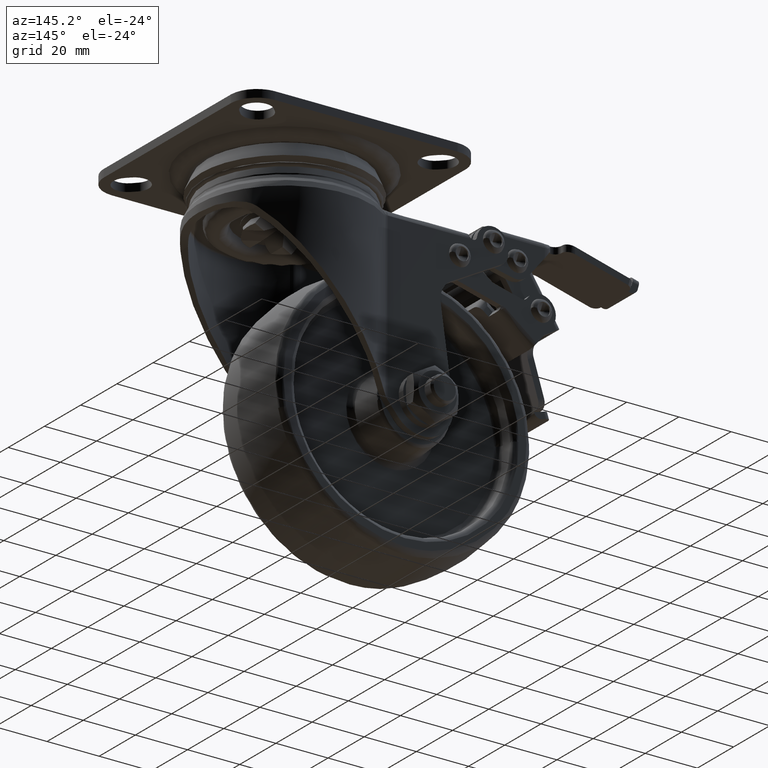
[diagram: clean part render]
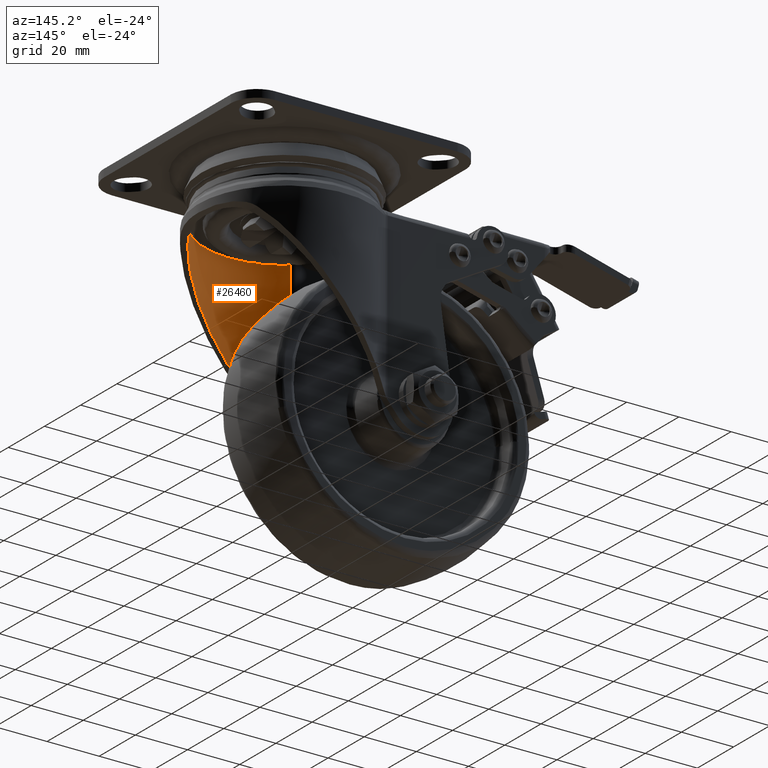
[diagram: same view with one face highlighted and labeled with its STEP entity id]
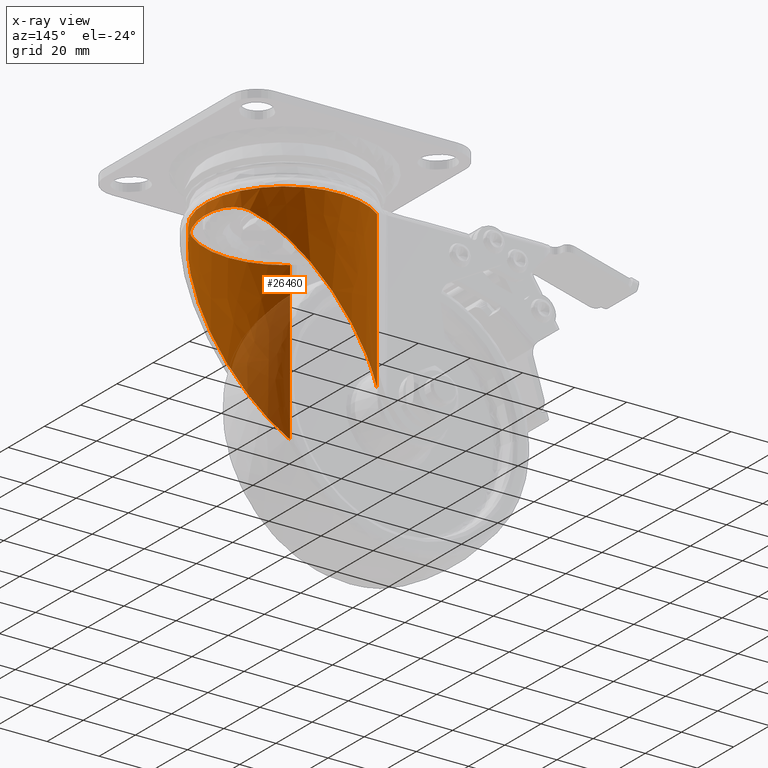
[diagram: x-ray of the same camera — body ghosted, the highlighted face saturated]
A machine part, auxiliary view. The second image highlights one B-rep face of the part: STEP entity #26460.
The next image is the same camera in x-ray: the body ghosted, the highlighted face saturated — about 22% of this face is hidden behind the body in this view.
In plain terms, the highlighted face is a freeform B-spline surface patch.
Its self-contained STEP definition (entity closure, byte-faithful):
#24074=CARTESIAN_POINT('',(-18.749469694795049,24.056338054439951,-21.050011000000051));
#24075=VERTEX_POINT('',#24074);
#24220=CARTESIAN_POINT('',(-18.749469694795049,24.056338054439951,-81.248765110259001));
#24221=VERTEX_POINT('',#24220);
#24237=CARTESIAN_POINT('',(-18.749469694795049,24.056338054439951,-21.050011000000051));
#24238=CARTESIAN_POINT('',(-18.749469694795049,24.056338054439951,-81.248765110259001));
#24239=QUASI_UNIFORM_CURVE('',1,(#24237,#24238),.UNSPECIFIED.,.F.,.U.);
#24240=EDGE_CURVE('',#24075,#24221,#24239,.T.);
#24406=CARTESIAN_POINT('',(-18.749469694795302,-24.056338054439799,-21.050011000000051));
#24407=VERTEX_POINT('',#24406);
#24515=CARTESIAN_POINT('',(-18.749469694795302,-24.056338054439799,-81.248765110259285));
#24516=VERTEX_POINT('',#24515);
#24536=CARTESIAN_POINT('',(-18.749469694795302,-24.056338054439799,-81.248765110259285));
#24537=CARTESIAN_POINT('',(-18.749469694795302,-24.056338054439799,-21.050011000000051));
#24538=QUASI_UNIFORM_CURVE('',1,(#24536,#24537),.UNSPECIFIED.,.F.,.U.);
#24539=EDGE_CURVE('',#24516,#24407,#24538,.T.);
#24558=CARTESIAN_POINT('',(25.319569484859901,-17.004982079581449,-28.396016215767649));
#24559=VERTEX_POINT('',#24558);
#24567=CARTESIAN_POINT('',(25.319569484859901,17.004982079581399,-28.396016215767649));
#24568=VERTEX_POINT('',#24567);
#24569=CARTESIAN_POINT('',(25.319569484859901,17.004982079581399,-28.396016215767599));
#24570=CARTESIAN_POINT('',(25.501726099761090,16.733759972640438,-28.177552686585688));
#24571=CARTESIAN_POINT('',(25.683856663311630,16.453139520035819,-27.977934000523501));
#24572=CARTESIAN_POINT('',(26.045290072859920,15.874796319571651,-27.609830883265069));
#24573=CARTESIAN_POINT('',(26.224602760017710,15.577064630157709,-27.441375587014338));
#24574=CARTESIAN_POINT('',(26.755076478404909,14.659971657866590,-26.975524969864288));
#24575=CARTESIAN_POINT('',(27.098664885226459,14.016798610222139,-26.717348940422429));
#24576=CARTESIAN_POINT('',(27.507311563319210,13.176976766220269,-26.442967219010480));
#24577=CARTESIAN_POINT('',(27.588120559511431,13.006968507308221,-26.390463549457621));
#24578=CARTESIAN_POINT('',(27.746955721453581,12.664599241505419,-26.290342977289470));
#24579=CARTESIAN_POINT('',(27.824854088478340,12.492527548894200,-26.242800443468269));
#24580=CARTESIAN_POINT('',(28.053922869409440,11.973736542139971,-26.107028808645111));
#24581=CARTESIAN_POINT('',(28.200465514419900,11.624444081892671,-26.025634594818261));
#24582=CARTESIAN_POINT('',(28.621106086253938,10.566837979969851,-25.804132741229811));
#24583=CARTESIAN_POINT('',(28.876213164641879,9.848826617380267,-25.686497904040369));
#24584=CARTESIAN_POINT('',(29.333588940382249,8.389018556764450,-25.493069552738309));
#24585=CARTESIAN_POINT('',(29.535874083981149,7.647214352612278,-25.417359489810849));
#24586=CARTESIAN_POINT('',(29.754318099453009,6.705812929036103,-25.341271243118580));
#24587=CARTESIAN_POINT('',(29.796285510907548,6.516823312860447,-25.326992515762431));
#24588=CARTESIAN_POINT('',(29.876738437401251,6.137435676377457,-25.300163567331811));
#24589=CARTESIAN_POINT('',(29.915262531289201,5.946831428735242,-25.287601157954960));
#24590=CARTESIAN_POINT('',(30.025225567968992,5.374637824725022,-25.252408973062170));
#24591=CARTESIAN_POINT('',(30.091036606032748,4.992884395307664,-25.232267857781981));
#24592=CARTESIAN_POINT('',(30.266313876387692,3.846779887309643,-25.180141990994159));
#24593=CARTESIAN_POINT('',(30.353655620480211,3.081586950767564,-25.156330953585289));
#24594=CARTESIAN_POINT('',(30.470330524593919,1.549046604802843,-25.125070519799468));
#24595=CARTESIAN_POINT('',(30.499662690851061,0.781698995967875,-25.117637002414650));
#24596=CARTESIAN_POINT('',(30.500331997202569,-0.755132860105324,-25.117464188840039));
#24597=CARTESIAN_POINT('',(30.471670972060309,-1.524617007643211,-25.124721346070839));
#24598=CARTESIAN_POINT('',(30.384441774087740,-2.680486170193444,-25.148077700498931));
#24599=CARTESIAN_POINT('',(30.347984423505459,-3.066050285634417,-25.157970113093050));
#24600=CARTESIAN_POINT('',(30.282057622079900,-3.644818613185938,-25.176427084944290));
#24601=CARTESIAN_POINT('',(30.258179767147048,-3.838016119387123,-25.183192683445590));
#24602=CARTESIAN_POINT('',(30.206794716936400,-4.223430298054557,-25.197991522096469));
#24603=CARTESIAN_POINT('',(30.179300961081129,-4.415583197584348,-25.206020723125530));
#24604=CARTESIAN_POINT('',(30.032911770448901,-5.373574024260854,-25.249546216194329));
#24605=CARTESIAN_POINT('',(29.887282495540578,-6.131115483656450,-25.295027098593390));
#24606=CARTESIAN_POINT('',(29.540707094464679,-7.628030964883593,-25.415607495423458));
#24607=CARTESIAN_POINT('',(29.339751646137849,-8.367407166771255,-25.490665071892089));
#24608=CARTESIAN_POINT('',(28.883680092865330,-9.826879140632519,-25.683144231828649));
#24609=CARTESIAN_POINT('',(28.628551431866899,-10.546982930128610,-25.800463836393480));
#24610=CARTESIAN_POINT('',(28.276367075755811,-11.433875279056540,-25.985606643735640));
#24611=CARTESIAN_POINT('',(28.204266550160440,-11.610589531812170,-26.024580942093571));
#24612=CARTESIAN_POINT('',(28.056754317787249,-11.962649291024640,-26.106820719002521));
#24613=CARTESIAN_POINT('',(27.981600272604311,-12.137375317882251,-26.149944462521439));
#24614=CARTESIAN_POINT('',(27.752431738223819,-12.656848858637989,-26.285631272514170));
#24615=CARTESIAN_POINT('',(27.594578492120920,-12.997201625947310,-26.384564377092161));
#24616=CARTESIAN_POINT('',(27.269835816870060,-13.665433281981990,-26.602233933692361));
#24617=CARTESIAN_POINT('',(27.102944054233259,-13.993313754799569,-26.720963297505349));
#24618=CARTESIAN_POINT('',(26.761405155547379,-14.635901077412440,-26.981684952719171));
#24619=CARTESIAN_POINT('',(26.586754372908040,-14.950610753667750,-27.123665276019210));
#24620=CARTESIAN_POINT('',(26.320116320109548,-15.412107422844951,-27.357346023641249));
#24621=CARTESIAN_POINT('',(26.230462336716290,-15.564176392858810,-27.438699340794692));
#24622=CARTESIAN_POINT('',(26.049833695520761,-15.864643255416320,-27.608992875228370));
#24623=CARTESIAN_POINT('',(25.958797103382128,-16.013139949770711,-27.697995152966431));
#24624=CARTESIAN_POINT('',(25.684488972749520,-16.452239220060932,-27.977143004781890));
#24625=CARTESIAN_POINT('',(25.501362888360038,-16.734300776286350,-28.177988292202070));
#24626=CARTESIAN_POINT('',(25.319569484859901,-17.004982079581449,-28.396016215767599));
#24627=B_SPLINE_CURVE_WITH_KNOTS('',3,(#24569,#24570,#24571,#24572,#24573,#24574,#24575,#24576,#24577,#24578,#24579,#24580,#24581,#24582,#24583,#24584,#24585,#24586,#24587,#24588,#24589,#24590,#24591,#24592,#24593,#24594,#24595,#24596,#24597,#24598,#24599,#24600,#24601,#24602,#24603,#24604,#24605,#24606,#24607,#24608,#24609,#24610,#24611,#24612,#24613,#24614,#24615,#24616,#24617,#24618,#24619,#24620,#24621,#24622,#24623,#24624,#24625,#24626),.UNSPECIFIED.,.F.,.U.,(4,2,2,2,2,2,2,2,2,2,2,2,2,2,2,2,2,2,2,2,2,2,2,2,2,2,2,2,4),(0.0,0.031250000000000,0.062500000000000,0.124999999999999,0.140624999999999,0.156249999999999,0.187499999999999,0.249999999999999,0.312499999999999,0.328124999999999,0.343749999999999,0.374999999999999,0.437499999999999,0.499999999999999,0.562500000000000,0.593750000000000,0.609375000000000,0.625000000000000,0.687500000000000,0.750000000000000,0.812500000000000,0.828125000000000,0.843750000000000,0.875000000000000,0.906250000000000,0.937500000000000,0.953125000000000,0.968750000000000,1.0),.UNSPECIFIED.);
#24628=EDGE_CURVE('',#24568,#24559,#24627,.T.);
#24746=CARTESIAN_POINT('',(-18.749469694795302,-24.056338054439799,-21.050011000000051));
#24747=CARTESIAN_POINT('',(-16.791517733626190,-25.583251383893248,-21.050010999999991));
#24748=CARTESIAN_POINT('',(-13.802594016501230,-27.373436353837690,-21.050011000000090));
#24749=CARTESIAN_POINT('',(-9.167228647816714,-29.170482109552911,-21.050011000000069));
#24750=CARTESIAN_POINT('',(-5.460500314078296,-30.108153673347051,-21.050011000000069));
#24751=CARTESIAN_POINT('',(-1.396636436148899,-30.549536809168341,-21.050011000000069));
#24752=CARTESIAN_POINT('',(2.422848187207901,-30.479762797214089,-21.050010999999991));
#24753=CARTESIAN_POINT('',(5.941481480639334,-29.982498887554701,-21.050011000000179));
#24754=CARTESIAN_POINT('',(10.067270955274420,-28.912662565353958,-21.050010999999781));
#24755=CARTESIAN_POINT('',(14.002254607399580,-27.239490195287161,-21.050011000000509));
#24756=CARTESIAN_POINT('',(17.993948084668119,-24.742078346860978,-21.050010999999291));
#24757=CARTESIAN_POINT('',(21.000776199679041,-22.238970461768901,-21.050011000001639));
#24758=CARTESIAN_POINT('',(23.652318568270200,-19.368235332971480,-21.050010999997941));
#24759=CARTESIAN_POINT('',(26.001144314981740,-16.133253624137328,-21.050011000001032));
#24760=CARTESIAN_POINT('',(27.962870810570930,-12.441549766087901,-21.050010999999429));
#24761=CARTESIAN_POINT('',(29.283393098855669,-8.761223597123268,-21.050011000000168));
#24762=CARTESIAN_POINT('',(30.157939207289608,-5.045350081574081,-21.050011000002709));
#24763=CARTESIAN_POINT('',(30.544933188845931,-1.509733301598281,-21.050010999993120));
#24764=CARTESIAN_POINT('',(30.476749389252511,2.396708553343485,-21.050011000004979));
#24765=CARTESIAN_POINT('',(29.901962574984129,6.623323691996542,-21.050010999997198));
#24766=CARTESIAN_POINT('',(28.414451896892452,11.569186051855340,-21.050011000001629));
#24767=CARTESIAN_POINT('',(26.070812102844361,16.073768550639240,-21.050010999999561));
#24768=CARTESIAN_POINT('',(23.693751612381369,19.288031146743940,-21.050011000000101));
#24769=CARTESIAN_POINT('',(21.367756420049741,21.850815618478350,-21.050010999998339));
#24770=CARTESIAN_POINT('',(18.705870843604160,24.208018034369481,-21.050011000005181));
#24771=CARTESIAN_POINT('',(14.865027074655471,26.777369683931099,-21.050010999997610));
#24772=CARTESIAN_POINT('',(10.741973737284381,28.681165517782141,-21.050011000000950));
#24773=CARTESIAN_POINT('',(6.466313094211349,29.889985288331381,-21.050010999999920));
#24774=CARTESIAN_POINT('',(2.952151435769364,30.417843255871350,-21.050011000000040));
#24775=CARTESIAN_POINT('',(-0.684780812036822,30.563685606687581,-21.050011000000051));
#24776=CARTESIAN_POINT('',(-4.938701222212315,30.232757721323480,-21.050011000000051));
#24777=CARTESIAN_POINT('',(-9.783576010428160,29.052158739616761,-21.050011000000030));
#24778=CARTESIAN_POINT('',(-14.590883404080770,26.942683590690891,-21.050011000000069));
#24779=CARTESIAN_POINT('',(-17.420683216772190,25.092121852735140,-21.050011000000051));
#24780=CARTESIAN_POINT('',(-18.749469694795049,24.056338054439951,-21.050011000000051));
#24781=B_SPLINE_CURVE_WITH_KNOTS('',3,(#24746,#24747,#24748,#24749,#24750,#24751,#24752,#24753,#24754,#24755,#24756,#24757,#24758,#24759,#24760,#24761,#24762,#24763,#24764,#24765,#24766,#24767,#24768,#24769,#24770,#24771,#24772,#24773,#24774,#24775,#24776,#24777,#24778,#24779,#24780),.UNSPECIFIED.,.F.,.U.,(4,1,1,1,1,1,1,1,1,1,1,1,1,1,1,1,1,1,1,1,1,1,1,1,1,1,1,1,1,1,1,1,4),(0.000000055745602,7.448613305887903,10.374916009529571,14.897332152312289,18.887678892810531,22.612027251824959,26.336380582991922,29.528682183100859,35.381181593545961,39.105505898543022,43.628006333457691,47.086141937329003,50.810451259654883,55.598973173529863,59.589291165068389,62.515593448884658,67.038000981246014,70.230302088673042,74.220677493718540,79.807214697925417,85.659680750672720,89.384098166260941,91.778115688588215,96.034543255725239,100.024918693549910,105.611449734402000,109.601792707275000,113.326141081051800,116.252417411131500,120.508827890726710,126.095357517467600,131.149811861167190,136.204187090894890),.UNSPECIFIED.);
#24782=EDGE_CURVE('',#24407,#24075,#24781,.T.);
#26391=CARTESIAN_POINT('',(-19.447227053433860,-23.495858663980030,-19.545042147243560));
#26392=CARTESIAN_POINT('',(-19.447227053433860,-23.495858663980030,-82.791358184334683));
#26393=CARTESIAN_POINT('',(2.849510283224009,-41.950588058547787,-19.545042147243564));
#26394=CARTESIAN_POINT('',(2.849510283224009,-41.950588058547787,-82.791358184334683));
#26395=CARTESIAN_POINT('',(22.445869182154500,-20.650253535565671,-19.545042147243560));
#26396=CARTESIAN_POINT('',(22.445869182154500,-20.650253535565671,-82.791358184334683));
#26397=CARTESIAN_POINT('',(42.042228081085000,0.650080987416448,-19.545042147243564));
#26398=CARTESIAN_POINT('',(42.042228081085000,0.650080987416448,-82.791358184334683));
#26399=CARTESIAN_POINT('',(21.796679108138019,21.334357133093910,-19.545042147243560));
#26400=CARTESIAN_POINT('',(21.796679108138019,21.334357133093910,-82.791358184334683));
#26401=CARTESIAN_POINT('',(1.551130135191048,42.018633278771389,-19.545042147243564));
#26402=CARTESIAN_POINT('',(1.551130135191048,42.018633278771389,-82.791358184334683));
#26403=CARTESIAN_POINT('',(-20.164369094064501,22.883361498343550,-19.545042147243560));
#26404=CARTESIAN_POINT('',(-20.164369094064501,22.883361498343550,-82.791358184334683));
#26412=(BOUNDED_SURFACE()B_SPLINE_SURFACE(1,2,((#26391,#26393,#26395,#26397,#26399,#26401,#26403),(#26392,#26394,#26396,#26398,#26400,#26402,#26404)),.UNSPECIFIED.,.F.,.F.,.U.)B_SPLINE_SURFACE_WITH_KNOTS((2,2),(3,2,2,3),(0.0,63.246316037091120),(0.0,48.673064986184272,97.346129972368544,146.019194958552790),.UNSPECIFIED.)GEOMETRIC_REPRESENTATION_ITEM()RATIONAL_B_SPLINE_SURFACE(((1.0,0.725374371012288,1.0,0.725374371012288,1.0,0.725374371012288,1.0),(1.0,0.725374371012288,1.0,0.725374371012288,1.0,0.725374371012288,1.0)))REPRESENTATION_ITEM('')SURFACE());
#26413=CARTESIAN_POINT('',(-18.749469694795302,-24.056338054439799,-81.248765110259285));
#26414=CARTESIAN_POINT('',(-17.660461793211880,-24.904934751888710,-79.942699395237398));
#26415=CARTESIAN_POINT('',(-15.646486127879930,-26.261722637461631,-77.527304095025343));
#26416=CARTESIAN_POINT('',(-12.640234205877610,-27.814339448940370,-73.921854988239886));
#26417=CARTESIAN_POINT('',(-9.098281082303293,-29.212177667904051,-69.673930310936043));
#26418=CARTESIAN_POINT('',(-5.605806215796301,-30.065893782339270,-65.485345749622510));
#26419=CARTESIAN_POINT('',(-1.963297344485260,-30.483853653696720,-61.116822852254053));
#26420=CARTESIAN_POINT('',(1.446108033565271,-30.546479080522172,-57.027864942574332));
#26421=CARTESIAN_POINT('',(4.970941773311826,-30.168395932808210,-52.800471833725673));
#26422=CARTESIAN_POINT('',(8.343418972388850,-29.387255021857559,-48.755802517733223));
#26423=CARTESIAN_POINT('',(10.961981848135050,-28.503853847008049,-45.615315483921492));
#26424=CARTESIAN_POINT('',(13.775254698194400,-27.271679838007060,-42.241309463283727));
#26425=CARTESIAN_POINT('',(16.296467030308989,-25.849898639275860,-39.217576593689770));
#26426=CARTESIAN_POINT('',(18.843874016048961,-24.032721511977741,-36.162428030079909));
#26427=CARTESIAN_POINT('',(20.980477758925598,-22.205494475354769,-33.599962788917523));
#26428=CARTESIAN_POINT('',(23.210015836656389,-19.882513583357252,-30.926039817903678));
#26429=CARTESIAN_POINT('',(24.614833761640710,-18.054185901414801,-29.241217765644929));
#26430=CARTESIAN_POINT('',(25.319569484859901,-17.004982079581449,-28.396016215767649));
#26431=B_SPLINE_CURVE_WITH_KNOTS('',3,(#26413,#26414,#26415,#26416,#26417,#26418,#26419,#26420,#26421,#26422,#26423,#26424,#26425,#26426,#26427,#26428,#26429,#26430),.UNSPECIFIED.,.F.,.U.,(4,1,1,1,1,1,1,1,1,1,1,1,1,1,1,4),(-0.000272044301823,5.700759565746679,10.261833128558100,14.822776775872370,22.804561155856060,26.795443970283159,31.926583070451880,38.767930560905853,43.328942875791569,47.889928758981199,51.310711478765583,57.011970348451477,60.432736963351410,64.423591415506195,68.414327064202368,72.975240089368782),.UNSPECIFIED.);
#26432=EDGE_CURVE('',#24516,#24559,#26431,.T.);
#26433=ORIENTED_EDGE('',*,*,#26432,.F.);
#26434=ORIENTED_EDGE('',*,*,#24539,.T.);
#26435=ORIENTED_EDGE('',*,*,#24782,.T.);
#26436=ORIENTED_EDGE('',*,*,#24240,.T.);
#26437=CARTESIAN_POINT('',(25.319569484859901,17.004982079581399,-28.396016215767649));
#26438=CARTESIAN_POINT('',(24.791100664463269,17.791836117514912,-29.029817868422938));
#26439=CARTESIAN_POINT('',(23.499101988318060,19.530789826133379,-30.579333874976541));
#26440=CARTESIAN_POINT('',(21.598461777248851,21.596708449615729,-32.858804035533133));
#26441=CARTESIAN_POINT('',(19.491999346110191,23.504444866283080,-35.385120288419223));
#26442=CARTESIAN_POINT('',(17.304384634180622,25.177508025585709,-38.008763853148913));
#26443=CARTESIAN_POINT('',(14.925743981778760,26.645888905643250,-40.861508080204239));
#26444=CARTESIAN_POINT('',(12.374731433777621,27.920575594429280,-43.920980856012200));
#26445=CARTESIAN_POINT('',(9.304477988579155,29.128600297018270,-47.603188079092860));
#26446=CARTESIAN_POINT('',(5.336856705222306,30.147049973830459,-52.361623826756983));
#26447=CARTESIAN_POINT('',(0.472906113331131,30.638891391363270,-58.195042572748783));
#26448=CARTESIAN_POINT('',(-4.520599032730263,30.309384240029718,-64.183838301019549));
#26449=CARTESIAN_POINT('',(-9.339495863545855,29.161256809299260,-69.963223304385053));
#26450=CARTESIAN_POINT('',(-13.112691937128400,27.622077186723040,-74.488481588181330));
#26451=CARTESIAN_POINT('',(-16.208793486988920,25.894292445718818,-78.201688883205662));
#26452=CARTESIAN_POINT('',(-17.878303903346151,24.735262204646808,-80.203961146342976));
#26453=CARTESIAN_POINT('',(-18.749469694795049,24.056338054439951,-81.248765110259001));
#26454=B_SPLINE_CURVE_WITH_KNOTS('',3,(#26437,#26438,#26439,#26440,#26441,#26442,#26443,#26444,#26445,#26446,#26447,#26448,#26449,#26450,#26451,#26452,#26453),.UNSPECIFIED.,.F.,.U.,(4,1,1,1,1,1,1,1,1,1,1,1,1,1,4),(-0.000041172519644,3.420536338969967,7.981480058441520,10.832080609006530,14.823044039918351,19.383920911315499,22.804665901473310,27.365662670434180,34.207156350554108,41.618612960732840,50.170475133163663,57.582017733327319,64.423466939389812,68.414344554415919,72.975240089378957),.UNSPECIFIED.);
#26455=EDGE_CURVE('',#24568,#24221,#26454,.T.);
#26456=ORIENTED_EDGE('',*,*,#26455,.F.);
#26457=ORIENTED_EDGE('',*,*,#24628,.T.);
#26458=EDGE_LOOP('',(#26433,#26434,#26435,#26436,#26456,#26457));
#26459=FACE_OUTER_BOUND('',#26458,.T.);
#26460=ADVANCED_FACE('',(#26459),#26412,.F.);